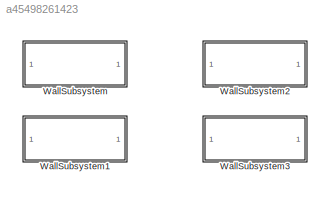
MODEL slx_a45498261423
KIND model
CONFIG AbsTol = auto
CONFIG EnableMultiTasking = off
CONFIG FixedStep = auto
CONFIG MaxStep = auto
CONFIG MinStep = auto
CONFIG RelTol = 1e-3
CONFIG SampleTimeConstraint = Unconstrained
CONFIG SolverName = VariableStepAuto
CONFIG StartTime = 0.0
CONFIG StopTime = 10000
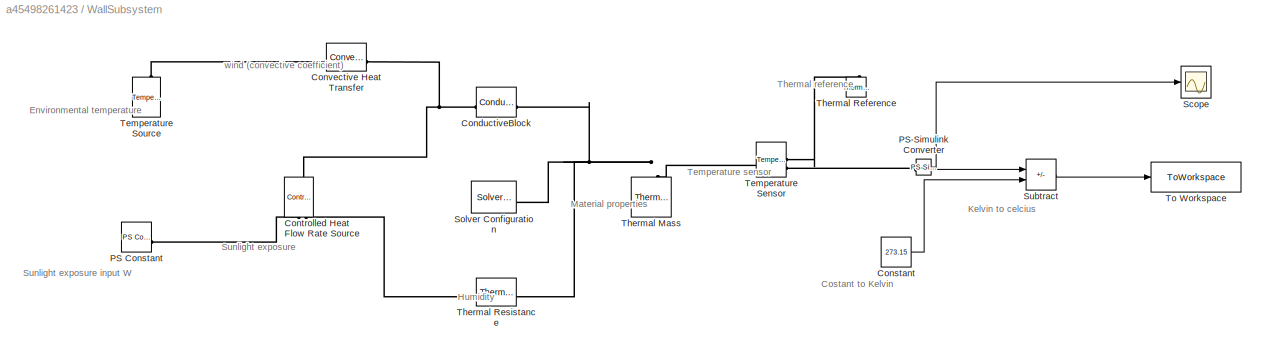
BLOCK [SubSystem] WallSubsystem
BLOCK [Reference] WallSubsystem/ConductiveBlock  REF=fl_lib/Thermal/Thermal Elements/Conductive Heat
Transfer
  SourceBlock = fl_lib/Thermal/Thermal Elements/Conductive Heat\nTransfer
  SourceType = Conductive Heat\nTransfer
BLOCK [Constant] WallSubsystem/Constant
  Value = 273.15
BLOCK [Reference] WallSubsystem/Controlled Heat Flow Rate Source  REF=fl_lib/Thermal/Thermal Sources/Controlled Heat Flow
Rate Source
  NameLocation = right
  SourceBlock = fl_lib/Thermal/Thermal Sources/Controlled Heat Flow\nRate Source
  SourceType = Controlled Heat Flow\nRate Source
BLOCK [Reference] WallSubsystem/Convective Heat Transfer  REF=fl_lib/Thermal/Thermal Elements/Convective Heat
Transfer
  SourceBlock = fl_lib/Thermal/Thermal Elements/Convective Heat\nTransfer
  SourceType = Convective Heat\nTransfer
BLOCK [Reference] WallSubsystem/PS Constant  REF=fl_lib/Physical Signals/Sources/PS Constant
  SourceBlock = fl_lib/Physical Signals/Sources/PS Constant
  SourceType = PS Constant
BLOCK [Reference] WallSubsystem/PS-Simulink Converter  REF=nesl_utility/PS-Simulink
Converter
  SourceBlock = nesl_utility/PS-Simulink\nConverter
  SourceType = PS-Simulink\nConverter
BLOCK [Scope] WallSubsystem/Scope
  ActiveDisplayYMaximum = 631.904324209794
  ActiveDisplayYMinimum = -421.46338549332961
  Floating = off
  GraphicalSettings = {"Style":{"BackgroundColor":[0.12941176470588237,0.12941176470588237,0.12941176470588237],"AxesColor":[0.07058823529411765,0.07058823529411765,0.07058823529411765],"LabelsColor":[0.8509803921568627,0.8509803921568627,0.8509803921568627],"PreserveColors":false,"Visible":[true],"LineStyle":["-"],"LineWidth":[1.5],"BarWidth":[0.9],"LineColor":["auto"],"LineFaceAlpha":[1],"LineEdgeAlpha":[1],"Marker":...<+2034ch>
  MultipleDisplayCache = [{"MaxYLimMag":300.75818746778543,"MaxYLimReal":631.904324209794,"MinYLimMag":293.17631278993105,"MinYLimReal":-421.46338549332961,"PlotAsMagnitudePhase":false,"ShowGrid":true,"ShowLegend":false,"Title":"%<SignalLabel>","YLabel":""}]
  NumInputPorts = 1
  ScopeFrameLocation = window
  WasSavedAsWebScope = on
  WindowPosition = [827.000000,284.000000,416.000000,449.000000,]
BLOCK [Reference] WallSubsystem/Solver Configuration  REF=nesl_utility/Solver
Configuration
  SourceBlock = nesl_utility/Solver\nConfiguration
  SourceType = Solver\nConfiguration
BLOCK [Sum] WallSubsystem/Subtract
  IconShape = rectangular
  Inputs = +-
BLOCK [Reference] WallSubsystem/Temperature Sensor  REF=fl_lib/Thermal/Thermal Sensors/Temperature Sensor
  SourceBlock = fl_lib/Thermal/Thermal Sensors/Temperature Sensor
  SourceType = Temperature Sensor
BLOCK [Reference] WallSubsystem/Temperature Source  REF=fl_lib/Thermal/Thermal Sources/Temperature Source
  NameLocation = right
  SourceBlock = fl_lib/Thermal/Thermal Sources/Temperature Source
  SourceType = Temperature Source
BLOCK [Reference] WallSubsystem/Thermal Mass  REF=fl_lib/Thermal/Thermal Elements/Thermal Mass
  NameLocation = right
  SourceBlock = fl_lib/Thermal/Thermal Elements/Thermal Mass
  SourceType = Thermal Mass
BLOCK [Reference] WallSubsystem/Thermal Reference  REF=fl_lib/Thermal/Thermal Elements/Thermal Reference
  NameLocation = right
  SourceBlock = fl_lib/Thermal/Thermal Elements/Thermal Reference
  SourceType = Thermal Reference
BLOCK [Reference] WallSubsystem/Thermal Resistance  REF=fl_lib/Thermal/Thermal Elements/Thermal Resistance
  SourceBlock = fl_lib/Thermal/Thermal Elements/Thermal Resistance
  SourceType = Thermal Resistance
BLOCK [ToWorkspace] WallSubsystem/To Workspace
  FixptAsFi = on
  MaxDataPoints = inf
  SampleTime = -1
  VariableName = wall_temp
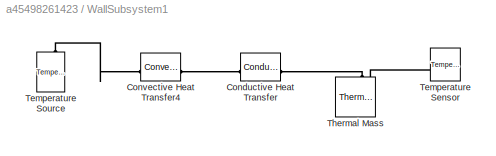
BLOCK [SubSystem] WallSubsystem1
  Commented = on
BLOCK [Reference] WallSubsystem1/Conductive Heat Transfer  REF=fl_lib/Thermal/Thermal Elements/Conductive Heat
Transfer
  SourceBlock = fl_lib/Thermal/Thermal Elements/Conductive Heat\nTransfer
  SourceType = Conductive Heat\nTransfer
BLOCK [Reference] WallSubsystem1/Convective Heat Transfer4  REF=fl_lib/Thermal/Thermal Elements/Convective Heat
Transfer
  SourceBlock = fl_lib/Thermal/Thermal Elements/Convective Heat\nTransfer
  SourceType = Convective Heat\nTransfer
BLOCK [Reference] WallSubsystem1/Temperature Sensor  REF=fl_lib/Thermal/Thermal Sensors/Temperature Sensor
  SourceBlock = fl_lib/Thermal/Thermal Sensors/Temperature Sensor
  SourceType = Temperature Sensor
BLOCK [Reference] WallSubsystem1/Temperature Source  REF=fl_lib/Thermal/Thermal Sources/Temperature Source
  NameLocation = right
  SourceBlock = fl_lib/Thermal/Thermal Sources/Temperature Source
  SourceType = Temperature Source
BLOCK [Reference] WallSubsystem1/Thermal Mass  REF=fl_lib/Thermal/Thermal Elements/Thermal Mass
  NameLocation = right
  SourceBlock = fl_lib/Thermal/Thermal Elements/Thermal Mass
  SourceType = Thermal Mass
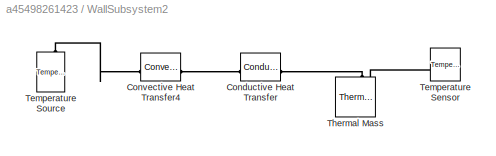
BLOCK [SubSystem] WallSubsystem2
  Commented = on
BLOCK [Reference] WallSubsystem2/Conductive Heat Transfer  REF=fl_lib/Thermal/Thermal Elements/Conductive Heat
Transfer
  SourceBlock = fl_lib/Thermal/Thermal Elements/Conductive Heat\nTransfer
  SourceType = Conductive Heat\nTransfer
BLOCK [Reference] WallSubsystem2/Convective Heat Transfer4  REF=fl_lib/Thermal/Thermal Elements/Convective Heat
Transfer
  SourceBlock = fl_lib/Thermal/Thermal Elements/Convective Heat\nTransfer
  SourceType = Convective Heat\nTransfer
BLOCK [Reference] WallSubsystem2/Temperature Sensor  REF=fl_lib/Thermal/Thermal Sensors/Temperature Sensor
  SourceBlock = fl_lib/Thermal/Thermal Sensors/Temperature Sensor
  SourceType = Temperature Sensor
BLOCK [Reference] WallSubsystem2/Temperature Source  REF=fl_lib/Thermal/Thermal Sources/Temperature Source
  NameLocation = right
  SourceBlock = fl_lib/Thermal/Thermal Sources/Temperature Source
  SourceType = Temperature Source
BLOCK [Reference] WallSubsystem2/Thermal Mass  REF=fl_lib/Thermal/Thermal Elements/Thermal Mass
  NameLocation = right
  SourceBlock = fl_lib/Thermal/Thermal Elements/Thermal Mass
  SourceType = Thermal Mass
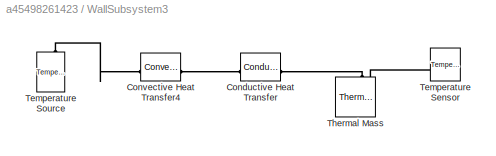
BLOCK [SubSystem] WallSubsystem3
  Commented = on
BLOCK [Reference] WallSubsystem3/Conductive Heat Transfer  REF=fl_lib/Thermal/Thermal Elements/Conductive Heat
Transfer
  SourceBlock = fl_lib/Thermal/Thermal Elements/Conductive Heat\nTransfer
  SourceType = Conductive Heat\nTransfer
BLOCK [Reference] WallSubsystem3/Convective Heat Transfer4  REF=fl_lib/Thermal/Thermal Elements/Convective Heat
Transfer
  SourceBlock = fl_lib/Thermal/Thermal Elements/Convective Heat\nTransfer
  SourceType = Convective Heat\nTransfer
BLOCK [Reference] WallSubsystem3/Temperature Sensor  REF=fl_lib/Thermal/Thermal Sensors/Temperature Sensor
  SourceBlock = fl_lib/Thermal/Thermal Sensors/Temperature Sensor
  SourceType = Temperature Sensor
BLOCK [Reference] WallSubsystem3/Temperature Source  REF=fl_lib/Thermal/Thermal Sources/Temperature Source
  NameLocation = right
  SourceBlock = fl_lib/Thermal/Thermal Sources/Temperature Source
  SourceType = Temperature Source
BLOCK [Reference] WallSubsystem3/Thermal Mass  REF=fl_lib/Thermal/Thermal Elements/Thermal Mass
  NameLocation = right
  SourceBlock = fl_lib/Thermal/Thermal Elements/Thermal Mass
  SourceType = Thermal Mass
ANNOTATION WallSubsystem: wind (convective coefficient)
ANNOTATION WallSubsystem: Costant to Kelvin
ANNOTATION WallSubsystem: Environmental temperature
ANNOTATION WallSubsystem: Humidity
ANNOTATION WallSubsystem: Kelvin to celcius
ANNOTATION WallSubsystem: Material properties
ANNOTATION WallSubsystem: Sunlight exposure
ANNOTATION WallSubsystem: Sunlight exposure input W
ANNOTATION WallSubsystem: Temperature sensor
ANNOTATION WallSubsystem: Thermal reference
LINE WallSubsystem/Constant:1 -> WallSubsystem/Subtract:2
NET WallSubsystem/PS-Simulink Converter:1 -> WallSubsystem/Scope:1, WallSubsystem/Subtract:1
LINE WallSubsystem/Subtract:1 -> WallSubsystem/To Workspace:1
PNET net1: WallSubsystem/ConductiveBlock:LConn1 -- WallSubsystem/Controlled Heat Flow Rate Source:LConn1 -- WallSubsystem/Convective Heat Transfer:RConn1
PNET net2: WallSubsystem/ConductiveBlock:RConn1 -- WallSubsystem/Solver Configuration:RConn1 -- WallSubsystem/Temperature Sensor:LConn1 -- WallSubsystem/Thermal Mass:LConn1 -- WallSubsystem/Thermal Resistance:RConn1
PLINE WallSubsystem/Controlled Heat Flow Rate Source:RConn1 -- WallSubsystem/PS Constant:RConn1
PLINE WallSubsystem/Controlled Heat Flow Rate Source:RConn2 -- WallSubsystem/Thermal Resistance:LConn1
PLINE WallSubsystem/Convective Heat Transfer:LConn1 -- WallSubsystem/Temperature Source:LConn1
PLINE WallSubsystem/PS-Simulink Converter:LConn1 -- WallSubsystem/Temperature Sensor:RConn2
PLINE WallSubsystem/Temperature Sensor:RConn1 -- WallSubsystem/Thermal Reference:LConn1
PLINE WallSubsystem1/Conductive Heat Transfer:LConn1 -- WallSubsystem1/Convective Heat Transfer4:RConn1
PNET net3: WallSubsystem1/Conductive Heat Transfer:RConn1 -- WallSubsystem1/Temperature Sensor:LConn1 -- WallSubsystem1/Thermal Mass:LConn1
PLINE WallSubsystem1/Convective Heat Transfer4:LConn1 -- WallSubsystem1/Temperature Source:LConn1
PLINE WallSubsystem2/Conductive Heat Transfer:LConn1 -- WallSubsystem2/Convective Heat Transfer4:RConn1
PNET net4: WallSubsystem2/Conductive Heat Transfer:RConn1 -- WallSubsystem2/Temperature Sensor:LConn1 -- WallSubsystem2/Thermal Mass:LConn1
PLINE WallSubsystem2/Convective Heat Transfer4:LConn1 -- WallSubsystem2/Temperature Source:LConn1
PLINE WallSubsystem3/Conductive Heat Transfer:LConn1 -- WallSubsystem3/Convective Heat Transfer4:RConn1
PNET net5: WallSubsystem3/Conductive Heat Transfer:RConn1 -- WallSubsystem3/Temperature Sensor:LConn1 -- WallSubsystem3/Thermal Mass:LConn1
PLINE WallSubsystem3/Convective Heat Transfer4:LConn1 -- WallSubsystem3/Temperature Source:LConn1
note: NET lines group one-source signal fan-out (src -> all destinations, sorted); 1:1 wires keep LINE; PNET lines group multi-terminal physical nets as a canonical sorted terminal list (undirected conserving connections); 2-terminal nets keep the pairwise PLINE form
